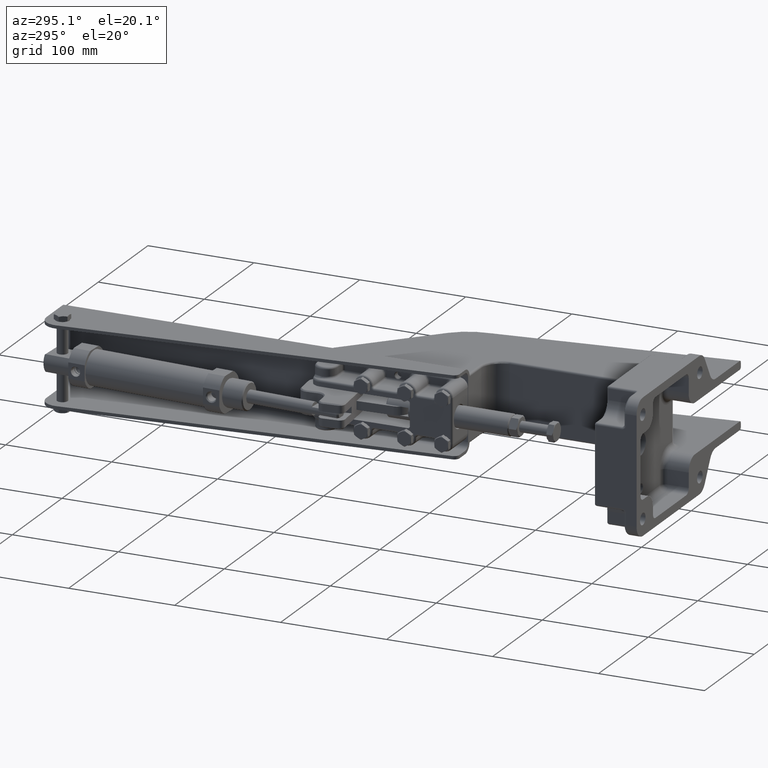
[diagram: clean part render]
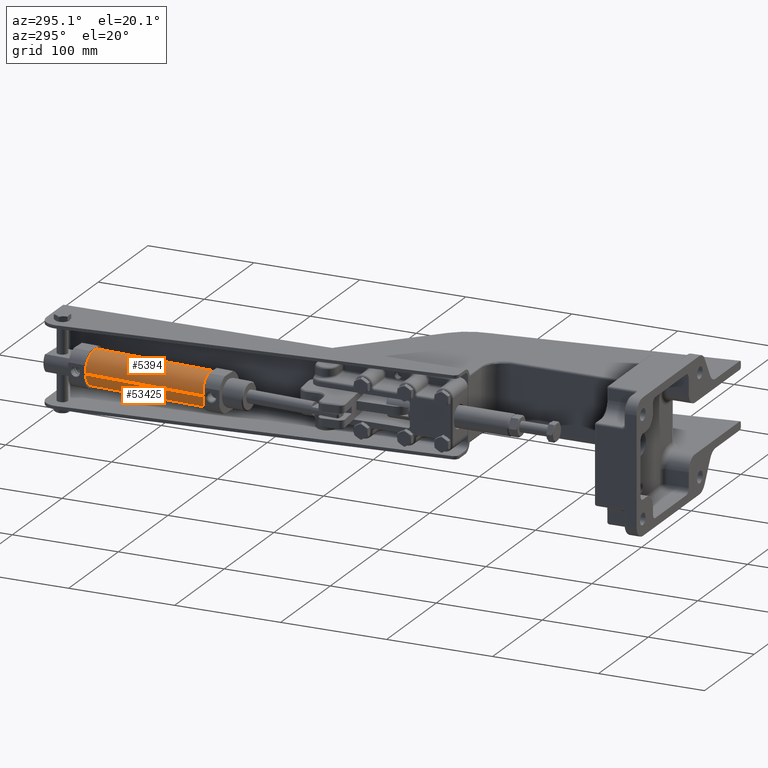
[diagram: same view with one multi-face feature highlighted, each face labeled with its STEP entity id]
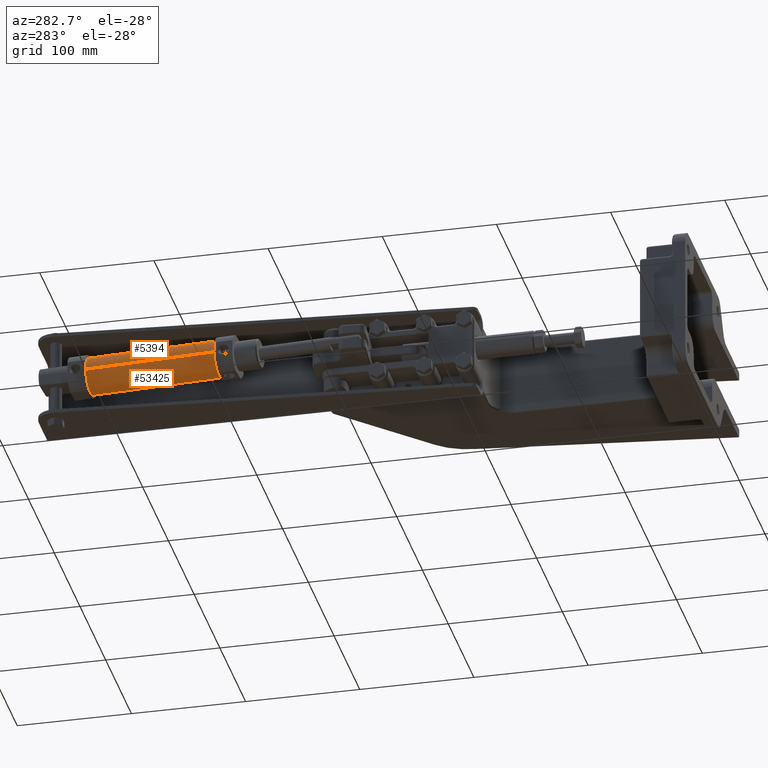
[diagram: same view with one multi-face feature highlighted, each face labeled with its STEP entity id]
A machine part, auxiliary view. The highlighted faces form ONE feature: a constant-radius fillet chain: 2 tangent blend faces with common blend radius 16 mm. The faces share edges in the B-rep.
A second angle (auxiliary view) of the same feature is appended — it is thin or edge-on in the first view.
Their STEP definitions:
[1] entity #53425 (Cylinder):
#3030 = CARTESIAN_POINT ( 'NONE',  ( 150.8770890867297100, 29.45245201279680800, 0.5132758040730817100 ) ) ;
#4854 = DIRECTION ( 'NONE',  ( -0.05076143102054375700, -0.9987108075517889800, -1.775381057445013100E-015 ) ) ;
#6204 = CIRCLE ( 'NONE', #27846, 16.00000000000000400 ) ;
#6705 = LINE ( 'NONE', #15591, #41279 ) ;
#8048 = CIRCLE ( 'NONE', #13297, 16.00000000000000000 ) ;
#9357 = DIRECTION ( 'NONE',  ( -0.9987108075517889800, 0.05076143102054316700, 4.267495969771504200E-010 ) ) ;
#9516 = CARTESIAN_POINT ( 'NONE',  ( 267.3510979800130900, 55.53232127766605000, -1.113275968681360000 ) ) ;
#9601 = DIRECTION ( 'NONE',  ( -0.9987108075517890900, 0.05076143102054317400, 4.267495969771504700E-010 ) ) ;
#10580 = VERTEX_POINT ( 'NONE', #3030 ) ;
#11646 = LINE ( 'NONE', #34485, #43655 ) ;
#12954 = CARTESIAN_POINT ( 'NONE',  ( 151.6882221008483200, 45.41116892882601500, -0.3000000577660382800 ) ) ;
#13297 = AXIS2_PLACEMENT_3D ( 'NONE', #47105, #22051, #51275 ) ;
#13738 = EDGE_CURVE ( 'NONE', #25204, #10580, #11646, .T. ) ;
#15591 = CARTESIAN_POINT ( 'NONE',  ( 267.3510979834226800, 55.53232127749276300, -1.113275968681360000 ) ) ;
#22051 = DIRECTION ( 'NONE',  ( -0.9987108075517892000, 0.05076143102054308400, 4.267496756615570800E-010 ) ) ;
#22152 = DIRECTION ( 'NONE',  ( -0.05069581338241341300, -0.9974198072518253300, 0.05082974136494500300 ) ) ;
#23141 = AXIS2_PLACEMENT_3D ( 'NONE', #30320, #9601, #22152 ) ;
#25204 = VERTEX_POINT ( 'NONE', #34752 ) ;
#27846 = AXIS2_PLACEMENT_3D ( 'NONE', #12954, #29760, #4854 ) ;
#29147 = EDGE_CURVE ( 'NONE', #38531, #25204, #8048, .T. ) ;
#29760 = DIRECTION ( 'NONE',  ( 0.9987108075517890900, -0.05076143102054317400, -4.267495969771504700E-010 ) ) ;
#30320 = CARTESIAN_POINT ( 'NONE',  ( 266.5399649693040400, 39.57360436146355200, -0.3000001068422419300 ) ) ;
#31806 = CYLINDRICAL_SURFACE ( 'NONE', #23141, 16.00000000000000000 ) ;
#32242 = VERTEX_POINT ( 'NONE', #32781 ) ;
#32781 = CARTESIAN_POINT ( 'NONE',  ( 152.4993551149669300, 61.36988584485522600, -1.113275919605156500 ) ) ;
#34485 = CARTESIAN_POINT ( 'NONE',  ( 265.7288319551854600, 23.61488744543434800, 0.5132757549968780500 ) ) ;
#34752 = CARTESIAN_POINT ( 'NONE',  ( 265.7288319517758700, 23.61488744560764600, 0.5132757549968780500 ) ) ;
#36723 = ORIENTED_EDGE ( 'NONE', *, *, #49725, .T. ) ;
#38531 = VERTEX_POINT ( 'NONE', #9516 ) ;
#39485 = EDGE_CURVE ( 'NONE', #38531, #32242, #6705, .T. ) ;
#40614 = DIRECTION ( 'NONE',  ( -0.9987108075517889800, 0.05076143102054316700, 4.267495969771504200E-010 ) ) ;
#41279 = VECTOR ( 'NONE', #40614, 1000.000000000000100 ) ;
#42979 = ORIENTED_EDGE ( 'NONE', *, *, #39485, .F. ) ;
#43655 = VECTOR ( 'NONE', #9357, 1000.000000000000100 ) ;
#44321 = FACE_OUTER_BOUND ( 'NONE', #46235, .T. ) ;
#46235 = EDGE_LOOP ( 'NONE', ( #42979, #49879, #48896, #36723 ) ) ;
#47105 = CARTESIAN_POINT ( 'NONE',  ( 266.5399649658945100, 39.57360436163685300, -0.3000001068422419300 ) ) ;
#48896 = ORIENTED_EDGE ( 'NONE', *, *, #13738, .T. ) ;
#49725 = EDGE_CURVE ( 'NONE', #10580, #32242, #6204, .T. ) ;
#49879 = ORIENTED_EDGE ( 'NONE', *, *, #29147, .T. ) ;
#51275 = DIRECTION ( 'NONE',  ( 0.05076143102054203600, 0.9987108075517892000, 0.0000000000000000000 ) ) ;
#53425 = ADVANCED_FACE ( 'NONE', ( #44321 ), #31806, .T. ) ;
[2] entity #5394 (Cylinder):
#648 = ORIENTED_EDGE ( 'NONE', *, *, #23798, .T. ) ;
#3030 = CARTESIAN_POINT ( 'NONE',  ( 150.8770890867297100, 29.45245201279680800, 0.5132758040730817100 ) ) ;
#5394 = ADVANCED_FACE ( 'NONE', ( #40596 ), #29466, .T. ) ;
#6705 = LINE ( 'NONE', #15591, #41279 ) ;
#8540 = CIRCLE ( 'NONE', #33906, 16.00000000000000000 ) ;
#9357 = DIRECTION ( 'NONE',  ( -0.9987108075517889800, 0.05076143102054316700, 4.267495969771504200E-010 ) ) ;
#9516 = CARTESIAN_POINT ( 'NONE',  ( 267.3510979800130900, 55.53232127766605000, -1.113275968681360000 ) ) ;
#10580 = VERTEX_POINT ( 'NONE', #3030 ) ;
#11465 = CIRCLE ( 'NONE', #39629, 16.00000000000000400 ) ;
#11646 = LINE ( 'NONE', #34485, #43655 ) ;
#13738 = EDGE_CURVE ( 'NONE', #25204, #10580, #11646, .T. ) ;
#15591 = CARTESIAN_POINT ( 'NONE',  ( 267.3510979834226800, 55.53232127749276300, -1.113275968681360000 ) ) ;
#19237 = CARTESIAN_POINT ( 'NONE',  ( 151.6882221008483200, 45.41116892882601500, -0.3000000577660382800 ) ) ;
#19287 = DIRECTION ( 'NONE',  ( -0.9987108075517892000, 0.05076143102054308400, 4.267496756615570800E-010 ) ) ;
#19398 = AXIS2_PLACEMENT_3D ( 'NONE', #47909, #52098, #26911 ) ;
#20713 = ORIENTED_EDGE ( 'NONE', *, *, #52377, .T. ) ;
#23320 = EDGE_LOOP ( 'NONE', ( #20713, #23770, #648, #34178 ) ) ;
#23457 = DIRECTION ( 'NONE',  ( -0.05076143102054375700, -0.9987108075517889800, 8.876905287225065600E-016 ) ) ;
#23770 = ORIENTED_EDGE ( 'NONE', *, *, #39485, .T. ) ;
#23798 = EDGE_CURVE ( 'NONE', #32242, #10580, #11465, .T. ) ;
#25204 = VERTEX_POINT ( 'NONE', #34752 ) ;
#26911 = DIRECTION ( 'NONE',  ( -0.05069581338241341300, -0.9974198072518253300, 0.05082974136494500300 ) ) ;
#29466 = CYLINDRICAL_SURFACE ( 'NONE', #19398, 16.00000000000000000 ) ;
#32242 = VERTEX_POINT ( 'NONE', #32781 ) ;
#32781 = CARTESIAN_POINT ( 'NONE',  ( 152.4993551149669300, 61.36988584485522600, -1.113275919605156500 ) ) ;
#33906 = AXIS2_PLACEMENT_3D ( 'NONE', #44350, #19287, #48522 ) ;
#34178 = ORIENTED_EDGE ( 'NONE', *, *, #13738, .F. ) ;
#34485 = CARTESIAN_POINT ( 'NONE',  ( 265.7288319551854600, 23.61488744543434800, 0.5132757549968780500 ) ) ;
#34752 = CARTESIAN_POINT ( 'NONE',  ( 265.7288319517758700, 23.61488744560764600, 0.5132757549968780500 ) ) ;
#38531 = VERTEX_POINT ( 'NONE', #9516 ) ;
#39485 = EDGE_CURVE ( 'NONE', #38531, #32242, #6705, .T. ) ;
#39629 = AXIS2_PLACEMENT_3D ( 'NONE', #19237, #48469, #23457 ) ;
#40596 = FACE_OUTER_BOUND ( 'NONE', #23320, .T. ) ;
#40614 = DIRECTION ( 'NONE',  ( -0.9987108075517889800, 0.05076143102054316700, 4.267495969771504200E-010 ) ) ;
#41279 = VECTOR ( 'NONE', #40614, 1000.000000000000100 ) ;
#43655 = VECTOR ( 'NONE', #9357, 1000.000000000000100 ) ;
#44350 = CARTESIAN_POINT ( 'NONE',  ( 266.5399649658945100, 39.57360436163685300, -0.3000001068422419300 ) ) ;
#47909 = CARTESIAN_POINT ( 'NONE',  ( 266.5399649693040400, 39.57360436146355200, -0.3000001068422419300 ) ) ;
#48469 = DIRECTION ( 'NONE',  ( 0.9987108075517890900, -0.05076143102054317400, -4.267495969771504700E-010 ) ) ;
#48522 = DIRECTION ( 'NONE',  ( 0.05076143102054203600, 0.9987108075517892000, 0.0000000000000000000 ) ) ;
#52098 = DIRECTION ( 'NONE',  ( -0.9987108075517890900, 0.05076143102054317400, 4.267495969771504700E-010 ) ) ;
#52377 = EDGE_CURVE ( 'NONE', #25204, #38531, #8540, .T. ) ;